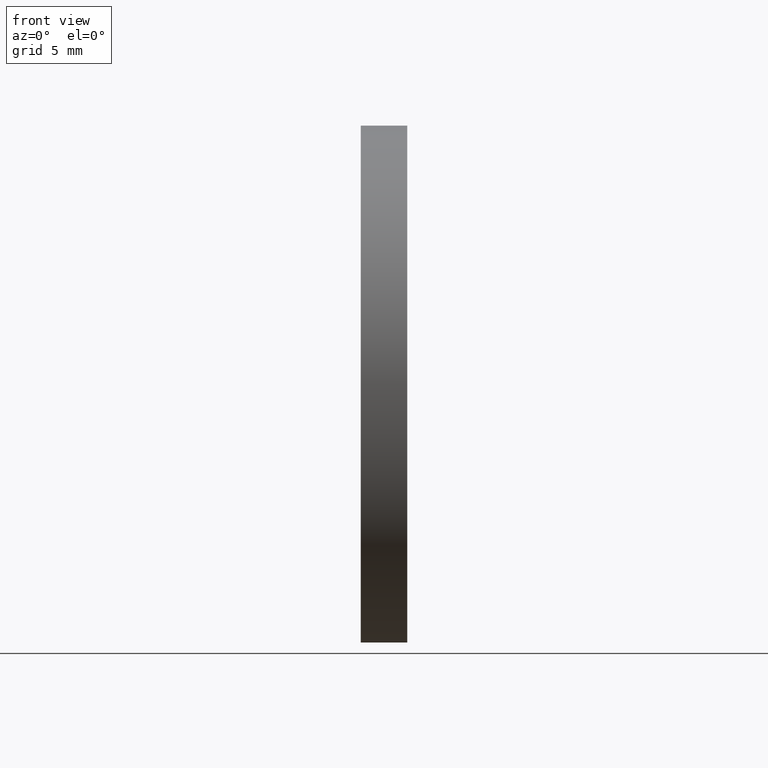
[diagram: clean part render]
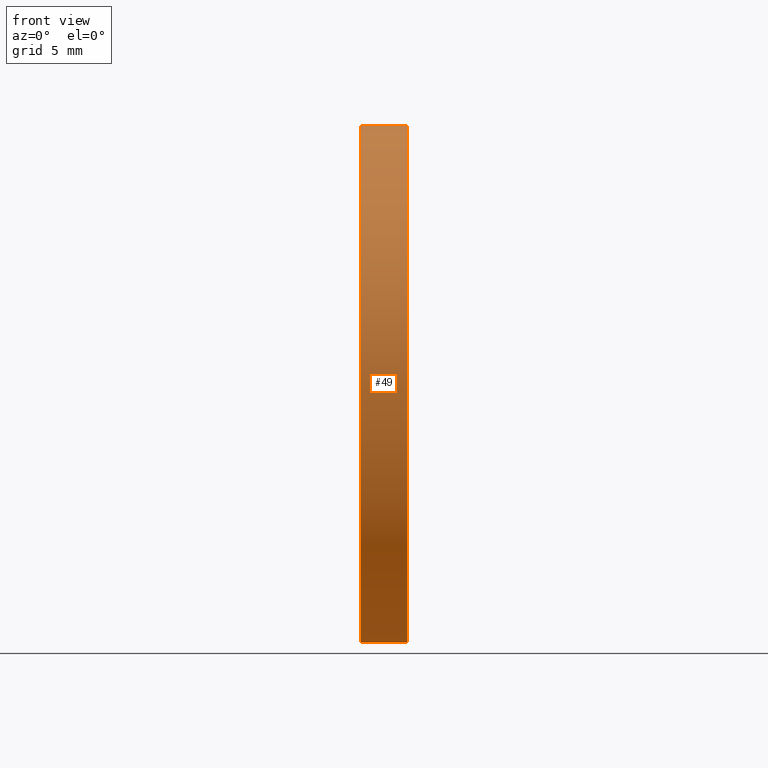
[diagram: same view with one face highlighted and labeled with its STEP entity id]
A machine part, front view. The second image highlights one B-rep face of the part: STEP entity #49.
In plain terms, the highlighted cylindrical surface (partial cylindrical patch) has radius 11.303 mm, axis along (-1, 0, 0).
Its self-contained STEP definition (entity closure, byte-faithful):
#8 = CARTESIAN_POINT ( 'NONE',  ( 0.07999999999999996000, 5.449678256205722000E-017, -0.4450000000000000100 ) ) ;
#9 = CARTESIAN_POINT ( 'NONE',  ( 0.07999999999999996000, 0.0000000000000000000, 0.4450000000000000100 ) ) ;
#10 = EDGE_CURVE ( 'NONE', #112, #111, #75, .T. ) ;
#12 = ORIENTED_EDGE ( 'NONE', *, *, #141, .T. ) ;
#13 = ORIENTED_EDGE ( 'NONE', *, *, #107, .F. ) ;
#15 = VERTEX_POINT ( 'NONE', #70 ) ;
#17 = EDGE_CURVE ( 'NONE', #112, #52, #69, .T. ) ;
#45 = DIRECTION ( 'NONE',  ( 0.0000000000000000000, 0.0000000000000000000, 1.000000000000000000 ) ) ;
#46 = DIRECTION ( 'NONE',  ( -1.000000000000000000, 0.0000000000000000000, 0.0000000000000000000 ) ) ;
#47 = CARTESIAN_POINT ( 'NONE',  ( -1.721125226614714300, 0.0000000000000000000, 0.0000000000000000000 ) ) ;
#49 = ADVANCED_FACE ( 'NONE', ( #65 ), #62, .T. ) ;
#50 = EDGE_LOOP ( 'NONE', ( #51, #57, #12, #13 ) ) ;
#51 = ORIENTED_EDGE ( 'NONE', *, *, #17, .F. ) ;
#52 = VERTEX_POINT ( 'NONE', #63 ) ;
#57 = ORIENTED_EDGE ( 'NONE', *, *, #10, .T. ) ;
#62 = CYLINDRICAL_SURFACE ( 'NONE', #64, 0.4450000000000000100 ) ;
#63 = CARTESIAN_POINT ( 'NONE',  ( 0.0000000000000000000, 5.449678256205722000E-017, -0.4450000000000000100 ) ) ;
#64 = AXIS2_PLACEMENT_3D ( 'NONE', #47, #46, #45 ) ;
#65 = FACE_OUTER_BOUND ( 'NONE', #50, .T. ) ;
#66 = DIRECTION ( 'NONE',  ( -1.000000000000000000, 0.0000000000000000000, 0.0000000000000000000 ) ) ;
#67 = VECTOR ( 'NONE', #66, 39.37007874015748100 ) ;
#68 = CARTESIAN_POINT ( 'NONE',  ( -1.721125226614714300, 5.449678256205722000E-017, -0.4450000000000000100 ) ) ;
#69 = LINE ( 'NONE', #68, #67 ) ;
#70 = CARTESIAN_POINT ( 'NONE',  ( 0.0000000000000000000, 0.0000000000000000000, 0.4450000000000000100 ) ) ;
#71 = DIRECTION ( 'NONE',  ( 0.0000000000000000000, 0.0000000000000000000, 1.000000000000000000 ) ) ;
#72 = DIRECTION ( 'NONE',  ( -1.000000000000000000, 0.0000000000000000000, 0.0000000000000000000 ) ) ;
#73 = CARTESIAN_POINT ( 'NONE',  ( 0.07999999999999996000, 0.0000000000000000000, 0.0000000000000000000 ) ) ;
#74 = AXIS2_PLACEMENT_3D ( 'NONE', #73, #72, #71 ) ;
#75 = CIRCLE ( 'NONE', #74, 0.4450000000000000100 ) ;
#107 = EDGE_CURVE ( 'NONE', #52, #15, #121, .T. ) ;
#111 = VERTEX_POINT ( 'NONE', #9 ) ;
#112 = VERTEX_POINT ( 'NONE', #8 ) ;
#117 = DIRECTION ( 'NONE',  ( 0.0000000000000000000, 0.0000000000000000000, 1.000000000000000000 ) ) ;
#118 = DIRECTION ( 'NONE',  ( -1.000000000000000000, 0.0000000000000000000, 0.0000000000000000000 ) ) ;
#119 = CARTESIAN_POINT ( 'NONE',  ( 0.0000000000000000000, 0.0000000000000000000, 0.0000000000000000000 ) ) ;
#120 = AXIS2_PLACEMENT_3D ( 'NONE', #119, #118, #117 ) ;
#121 = CIRCLE ( 'NONE', #120, 0.4450000000000000100 ) ;
#141 = EDGE_CURVE ( 'NONE', #111, #15, #164, .T. ) ;
#161 = DIRECTION ( 'NONE',  ( -1.000000000000000000, 0.0000000000000000000, 0.0000000000000000000 ) ) ;
#162 = VECTOR ( 'NONE', #161, 39.37007874015748100 ) ;
#163 = CARTESIAN_POINT ( 'NONE',  ( -1.721125226614714300, 0.0000000000000000000, 0.4450000000000000100 ) ) ;
#164 = LINE ( 'NONE', #163, #162 ) ;